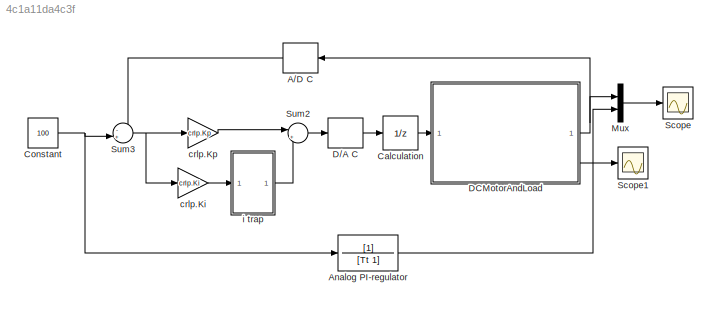
MODEL slx_4c1a11da4c3f
KIND model
CONFIG AbsTol = auto
CONFIG EnableMultiTasking = off
CONFIG FixedStep = auto
CONFIG MaxStep = 1e-4
CONFIG MinStep = auto
CONFIG RelTol = 1e-3
CONFIG SampleTimeConstraint = Unconstrained
CONFIG SolverName = ode23t
CONFIG StartTime = 0.0
CONFIG StopTime = Tmdl
BLOCK [ZeroOrderHold] A//D C
  NameLocation = top
  SampleTime = To
BLOCK [TransferFcn] Analog PI-regulator
  Denominator = [Tt 1]
BLOCK [UnitDelay] Calculation
  HasFrameUpgradeWarning = on
  SampleTime = To/1000
BLOCK [Constant] Constant
  Value = 100
BLOCK [ZeroOrderHold] D//A C
  SampleTime = To
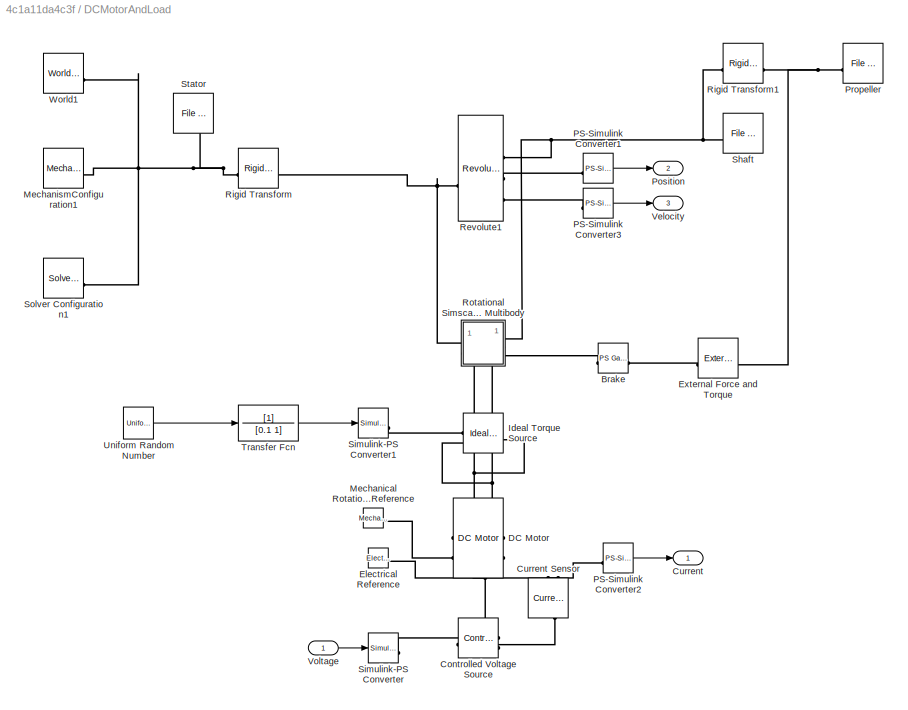
BLOCK [SubSystem] DCMotorAndLoad
BLOCK [Reference] DCMotorAndLoad/Brake  REF=fl_ps_legacy_lib/Legacy Physical
Signals/Functions/PS Gain
  SourceBlock = fl_ps_legacy_lib/Legacy Physical\nSignals/Functions/PS Gain
  SourceType = PS Gain
BLOCK [Reference] DCMotorAndLoad/Controlled Voltage Source  REF=fl_lib/Electrical/Electrical Sources/Controlled Voltage
Source
  NameLocation = top
  SourceBlock = fl_lib/Electrical/Electrical Sources/Controlled Voltage\nSource
  SourceType = Controlled Voltage\nSource
BLOCK [Outport] DCMotorAndLoad/Current
  VectorParamsAs1DForOutWhenUnconnected = off
BLOCK [Reference] DCMotorAndLoad/Current Sensor  REF=fl_lib/Electrical/Electrical Sensors/Current Sensor
  NameLocation = right
  SourceBlock = fl_lib/Electrical/Electrical Sensors/Current Sensor
  SourceType = Current Sensor
BLOCK [Reference] DCMotorAndLoad/DC Motor  REF=ee_lib/Electromechanical/Brushed Motors/DC Motor
  NameLocation = top
  SourceBlock = ee_lib/Electromechanical/Brushed Motors/DC Motor
  SourceType = DC Motor
BLOCK [Reference] DCMotorAndLoad/Electrical Reference  REF=fl_lib/Electrical/Electrical Elements/Electrical Reference
  SourceBlock = fl_lib/Electrical/Electrical Elements/Electrical Reference
  SourceType = Electrical Reference
BLOCK [Reference] DCMotorAndLoad/External Force and Torque  REF=sm_lib/Forces and
Torques/External Force
and Torque
  SourceBlock = sm_lib/Forces and\nTorques/External Force\nand Torque
  SourceType = External Force\nand Torque
BLOCK [Reference] DCMotorAndLoad/Ideal Torque Source  REF=fl_lib/Mechanical/Mechanical Sources/Ideal Torque Source
  SourceBlock = fl_lib/Mechanical/Mechanical Sources/Ideal Torque Source
  SourceType = Ideal Torque Source
BLOCK [Reference] DCMotorAndLoad/Mechanical Rotational Reference  REF=fl_lib/Mechanical/Rotational Elements/Mechanical
Rotational Reference
  NameLocation = top
  SourceBlock = fl_lib/Mechanical/Rotational Elements/Mechanical\nRotational Reference
  SourceType = Mechanical\nRotational Reference
BLOCK [Reference] DCMotorAndLoad/MechanismConfiguration1  REF=sm_lib/Utilities/Mechanism
Configuration
  SourceBlock = sm_lib/Utilities/Mechanism\nConfiguration
  SourceType = Mechanism\nConfiguration
BLOCK [Reference] DCMotorAndLoad/PS-Simulink Converter1  REF=nesl_utility/PS-Simulink
Converter
  SourceBlock = nesl_utility/PS-Simulink\nConverter
  SourceType = PS-Simulink\nConverter
BLOCK [Reference] DCMotorAndLoad/PS-Simulink Converter2  REF=nesl_utility/PS-Simulink
Converter
  SourceBlock = nesl_utility/PS-Simulink\nConverter
  SourceType = PS-Simulink\nConverter
BLOCK [Reference] DCMotorAndLoad/PS-Simulink Converter3  REF=nesl_utility/PS-Simulink
Converter
  SourceBlock = nesl_utility/PS-Simulink\nConverter
  SourceType = PS-Simulink\nConverter
BLOCK [Outport] DCMotorAndLoad/Position
  Port = 2
  VectorParamsAs1DForOutWhenUnconnected = off
BLOCK [Reference] DCMotorAndLoad/Propeller  REF=sm_lib/Body Elements/File Solid
  NameLocation = top
  SourceBlock = sm_lib/Body Elements/File Solid
  SourceType = File Solid
BLOCK [Reference] DCMotorAndLoad/Revolute1  REF=sm_lib/Joints/Revolute Joint
  SourceBlock = sm_lib/Joints/Revolute Joint
  SourceType = Revolute Joint
BLOCK [Reference] DCMotorAndLoad/Rigid Transform  REF=sm_lib/Frames and
Transforms/Rigid
Transform
  SourceBlock = sm_lib/Frames and\nTransforms/Rigid\nTransform
  SourceType = Rigid\nTransform
BLOCK [Reference] DCMotorAndLoad/Rigid Transform1  REF=sm_lib/Frames and
Transforms/Rigid
Transform
  SourceBlock = sm_lib/Frames and\nTransforms/Rigid\nTransform
  SourceType = Rigid\nTransform
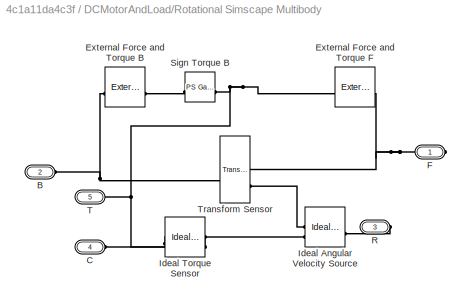
BLOCK [SubSystem] DCMotorAndLoad/Rotational Simscape Multibody
BLOCK [PMIOPort] DCMotorAndLoad/Rotational Simscape Multibody/B
  Port = 2
  Side = Left
BLOCK [PMIOPort] DCMotorAndLoad/Rotational Simscape Multibody/C
  Port = 4
  Side = Left
BLOCK [Reference] DCMotorAndLoad/Rotational Simscape Multibody/External Force and Torque B  REF=sm_lib/Forces and
Torques/External Force
and Torque
  NameLocation = top
  SourceBlock = sm_lib/Forces and\nTorques/External Force\nand Torque
  SourceType = External Force\nand Torque
BLOCK [Reference] DCMotorAndLoad/Rotational Simscape Multibody/External Force and Torque F  REF=sm_lib/Forces and
Torques/External Force
and Torque
  NameLocation = top
  SourceBlock = sm_lib/Forces and\nTorques/External Force\nand Torque
  SourceType = External Force\nand Torque
BLOCK [PMIOPort] DCMotorAndLoad/Rotational Simscape Multibody/F
  Side = Right
BLOCK [Reference] DCMotorAndLoad/Rotational Simscape Multibody/Ideal Angular Velocity Source  REF=fl_lib/Mechanical/Mechanical Sources/Ideal Angular
Velocity Source
  SourceBlock = fl_lib/Mechanical/Mechanical Sources/Ideal Angular\nVelocity Source
  SourceType = Ideal Angular\nVelocity Source
BLOCK [Reference] DCMotorAndLoad/Rotational Simscape Multibody/Ideal Torque Sensor  REF=fl_lib/Mechanical/Mechanical Sensors/Ideal Torque Sensor
  SourceBlock = fl_lib/Mechanical/Mechanical Sensors/Ideal Torque Sensor
  SourceType = Ideal Torque Sensor
BLOCK [PMIOPort] DCMotorAndLoad/Rotational Simscape Multibody/R
  Port = 3
  Side = Right
BLOCK [Reference] DCMotorAndLoad/Rotational Simscape Multibody/Sign Torque B  REF=fl_ps_legacy_lib/Legacy Physical
Signals/Functions/PS Gain
  SourceBlock = fl_ps_legacy_lib/Legacy Physical\nSignals/Functions/PS Gain
  SourceType = PS Gain
BLOCK [PMIOPort] DCMotorAndLoad/Rotational Simscape Multibody/T
  Port = 5
  Side = Right
BLOCK [Reference] DCMotorAndLoad/Rotational Simscape Multibody/Transform Sensor  REF=sm_lib/Frames and
Transforms/Transform
Sensor
  SourceBlock = sm_lib/Frames and\nTransforms/Transform\nSensor
  SourceType = Transform\nSensor
BLOCK [Reference] DCMotorAndLoad/Shaft  REF=sm_lib/Body Elements/File Solid
  SourceBlock = sm_lib/Body Elements/File Solid
  SourceType = File Solid
BLOCK [Reference] DCMotorAndLoad/Simulink-PS Converter  REF=nesl_utility/Simulink-PS
Converter
  SourceBlock = nesl_utility/Simulink-PS\nConverter
  SourceType = Simulink-PS\nConverter
BLOCK [Reference] DCMotorAndLoad/Simulink-PS Converter1  REF=nesl_utility/Simulink-PS
Converter
  SourceBlock = nesl_utility/Simulink-PS\nConverter
  SourceType = Simulink-PS\nConverter
BLOCK [Reference] DCMotorAndLoad/Solver Configuration1  REF=nesl_utility/Solver
Configuration
  SourceBlock = nesl_utility/Solver\nConfiguration
  SourceType = Solver\nConfiguration
BLOCK [Reference] DCMotorAndLoad/Stator  REF=sm_lib/Body Elements/File Solid
  NameLocation = left
  SourceBlock = sm_lib/Body Elements/File Solid
  SourceType = File Solid
BLOCK [TransferFcn] DCMotorAndLoad/Transfer Fcn
  Denominator = [0.1 1]
BLOCK [UniformRandomNumber] DCMotorAndLoad/Uniform Random Number
  SampleTime = 0.001
BLOCK [Outport] DCMotorAndLoad/Velocity
  Port = 3
  VectorParamsAs1DForOutWhenUnconnected = off
BLOCK [Inport] DCMotorAndLoad/Voltage
BLOCK [Reference] DCMotorAndLoad/World1  REF=sm_lib/Frames and
Transforms/World Frame
  SourceBlock = sm_lib/Frames and\nTransforms/World Frame
  SourceType = World Frame
BLOCK [Mux] Mux
  DisplayOption = bar
  Inputs = 2
BLOCK [Scope] Scope
  Floating = off
  NumInputPorts = 1
  ScopeSpecificationString = Simulink.scopes.TimeScopeBlockCfg('CurrentConfiguration', extmgr.ConfigurationSet(extmgr.Configuration('Core','General UI',true),extmgr.Configuration('Core','Source UI',true),extmgr.Configuration('Sources','WiredSimulink',true,'DataLogging',true,'DataLoggingVariableName','i','DataLoggingSaveFormat','Array'),extmgr.Configuration('Visuals','Time Domain',true,'SerializedDisplays',{struct('MinYLimReal...<+1525ch>
BLOCK [Scope] Scope1
  Floating = off
  NumInputPorts = 1
  ScopeSpecificationString = Simulink.scopes.TimeScopeBlockCfg('CurrentConfiguration', extmgr.ConfigurationSet(extmgr.Configuration('Core','General UI',true),extmgr.Configuration('Core','Source UI',true),extmgr.Configuration('Sources','WiredSimulink',true,'DataLoggingVariableName','ScopeData1'),extmgr.Configuration('Visuals','Time Domain',true,'SerializedDisplays',{struct('MinYLimReal','-1.00000','MaxYLimReal','1.00000','YLab...<+1446ch>
BLOCK [Sum] Sum2
  Inputs = |++
BLOCK [Sum] Sum3
  Inputs = -+|
BLOCK [Gain] crlp.Ki
  Gain = crlp.Ki
BLOCK [Gain] crlp.Kp
  Gain = crlp.Kp
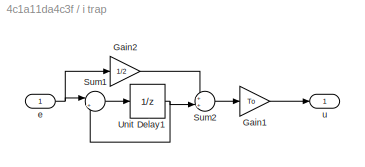
BLOCK [SubSystem] i trap
BLOCK [Gain] i trap/Gain1
  Gain = To
BLOCK [Gain] i trap/Gain2
  Gain = 1/2
BLOCK [Sum] i trap/Sum1
  Inputs = |++
BLOCK [Sum] i trap/Sum2
  Inputs = ++|
BLOCK [UnitDelay] i trap/Unit Delay1
  HasFrameUpgradeWarning = on
  SampleTime = To
BLOCK [Inport] i trap/e
BLOCK [Outport] i trap/u
LINE A//D C:1 -> Sum3:1
LINE Analog PI-regulator:1 -> Mux:2
LINE Calculation:1 -> DCMotorAndLoad:1
NET Constant:1 -> Analog PI-regulator:1, Sum3:2
LINE D//A C:1 -> Calculation:1
LINE DCMotorAndLoad/PS-Simulink Converter1:1 -> DCMotorAndLoad/Position:1
LINE DCMotorAndLoad/PS-Simulink Converter2:1 -> DCMotorAndLoad/Current:1
LINE DCMotorAndLoad/PS-Simulink Converter3:1 -> DCMotorAndLoad/Velocity:1
LINE DCMotorAndLoad/Transfer Fcn:1 -> DCMotorAndLoad/Simulink-PS Converter1:1
LINE DCMotorAndLoad/Uniform Random Number:1 -> DCMotorAndLoad/Transfer Fcn:1
LINE DCMotorAndLoad/Voltage:1 -> DCMotorAndLoad/Simulink-PS Converter:1
NET DCMotorAndLoad:1 -> A//D C:1, Mux:1
LINE DCMotorAndLoad:3 -> Scope1:1
LINE Mux:1 -> Scope:1
LINE Sum2:1 -> D//A C:1
NET Sum3:1 -> crlp.Ki:1, crlp.Kp:1
LINE crlp.Ki:1 -> i trap:1
LINE crlp.Kp:1 -> Sum2:1
LINE i trap/Gain1:1 -> i trap/u:1
LINE i trap/Gain2:1 -> i trap/Sum2:1
LINE i trap/Sum1:1 -> i trap/Unit Delay1:1
LINE i trap/Sum2:1 -> i trap/Gain1:1
NET i trap/Unit Delay1:1 -> i trap/Sum1:2, i trap/Sum2:2
NET i trap/e:1 -> i trap/Gain2:1, i trap/Sum1:1
LINE i trap:1 -> Sum2:2
PLINE DCMotorAndLoad/Brake:LConn1 -- DCMotorAndLoad/Rotational Simscape Multibody:RConn3
PLINE DCMotorAndLoad/Brake:RConn1 -- DCMotorAndLoad/External Force and Torque:LConn1
PLINE DCMotorAndLoad/Controlled Voltage Source:LConn1 -- DCMotorAndLoad/Current Sensor:LConn1
PLINE DCMotorAndLoad/Controlled Voltage Source:RConn1 -- DCMotorAndLoad/Simulink-PS Converter:RConn1
PNET net1: DCMotorAndLoad/Controlled Voltage Source:RConn2 -- DCMotorAndLoad/DC Motor:RConn1 -- DCMotorAndLoad/Electrical Reference:LConn1
PLINE DCMotorAndLoad/Current Sensor:RConn1 -- DCMotorAndLoad/PS-Simulink Converter2:LConn1
PLINE DCMotorAndLoad/Current Sensor:RConn2 -- DCMotorAndLoad/DC Motor:LConn1
PNET net2: DCMotorAndLoad/DC Motor:LConn2 -- DCMotorAndLoad/Ideal Torque Source:LConn1 -- DCMotorAndLoad/Rotational Simscape Multibody:RConn2
PNET net3: DCMotorAndLoad/DC Motor:RConn2 -- DCMotorAndLoad/Ideal Torque Source:RConn2 -- DCMotorAndLoad/Mechanical Rotational Reference:LConn1 -- DCMotorAndLoad/Rotational Simscape Multibody:LConn2
PNET net4: DCMotorAndLoad/External Force and Torque:RConn1 -- DCMotorAndLoad/Propeller:RConn1 -- DCMotorAndLoad/Rigid Transform1:RConn1
PLINE DCMotorAndLoad/Ideal Torque Source:RConn1 -- DCMotorAndLoad/Simulink-PS Converter1:RConn1
PNET net5: DCMotorAndLoad/MechanismConfiguration1:RConn1 -- DCMotorAndLoad/Rigid Transform:LConn1 -- DCMotorAndLoad/Solver Configuration1:RConn1 -- DCMotorAndLoad/Stator:RConn1 -- DCMotorAndLoad/World1:RConn1
PLINE DCMotorAndLoad/PS-Simulink Converter1:LConn1 -- DCMotorAndLoad/Revolute1:RConn2
PLINE DCMotorAndLoad/PS-Simulink Converter3:LConn1 -- DCMotorAndLoad/Revolute1:RConn3
PNET net6: DCMotorAndLoad/Revolute1:LConn1 -- DCMotorAndLoad/Rigid Transform:RConn1 -- DCMotorAndLoad/Rotational Simscape Multibody:LConn1
PNET net7: DCMotorAndLoad/Revolute1:RConn1 -- DCMotorAndLoad/Rigid Transform1:LConn1 -- DCMotorAndLoad/Rotational Simscape Multibody:RConn1 -- DCMotorAndLoad/Shaft:RConn1
PNET net8: DCMotorAndLoad/Rotational Simscape Multibody/B:RConn1 -- DCMotorAndLoad/Rotational Simscape Multibody/External Force and Torque B:RConn1 -- DCMotorAndLoad/Rotational Simscape Multibody/Transform Sensor:LConn1
PLINE DCMotorAndLoad/Rotational Simscape Multibody/C:RConn1 -- DCMotorAndLoad/Rotational Simscape Multibody/Ideal Torque Sensor:RConn1
PLINE DCMotorAndLoad/Rotational Simscape Multibody/External Force and Torque B:LConn1 -- DCMotorAndLoad/Rotational Simscape Multibody/Sign Torque B:RConn1
PNET net9: DCMotorAndLoad/Rotational Simscape Multibody/External Force and Torque F:LConn1 -- DCMotorAndLoad/Rotational Simscape Multibody/Ideal Torque Sensor:RConn2 -- DCMotorAndLoad/Rotational Simscape Multibody/Sign Torque B:LConn1 -- DCMotorAndLoad/Rotational Simscape Multibody/T:RConn1
PNET net10: DCMotorAndLoad/Rotational Simscape Multibody/External Force and Torque F:RConn1 -- DCMotorAndLoad/Rotational Simscape Multibody/F:RConn1 -- DCMotorAndLoad/Rotational Simscape Multibody/Transform Sensor:RConn1
PLINE DCMotorAndLoad/Rotational Simscape Multibody/Ideal Angular Velocity Source:LConn1 -- DCMotorAndLoad/Rotational Simscape Multibody/R:RConn1
PLINE DCMotorAndLoad/Rotational Simscape Multibody/Ideal Angular Velocity Source:RConn1 -- DCMotorAndLoad/Rotational Simscape Multibody/Transform Sensor:RConn2
PLINE DCMotorAndLoad/Rotational Simscape Multibody/Ideal Angular Velocity Source:RConn2 -- DCMotorAndLoad/Rotational Simscape Multibody/Ideal Torque Sensor:LConn1
note: NET lines group one-source signal fan-out (src -> all destinations, sorted); 1:1 wires keep LINE; PNET lines group multi-terminal physical nets as a canonical sorted terminal list (undirected conserving connections); 2-terminal nets keep the pairwise PLINE form
